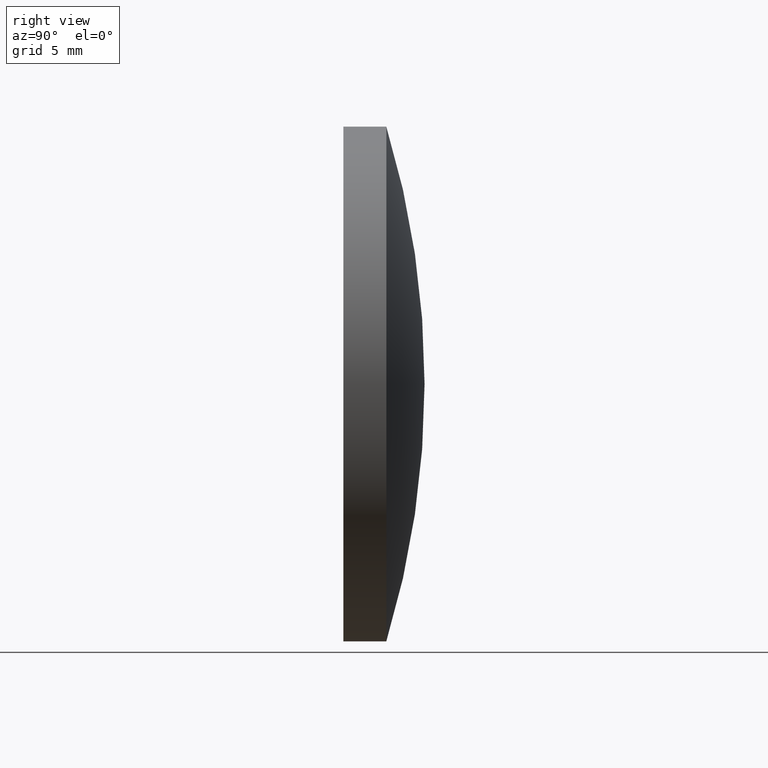
[diagram: clean part render]
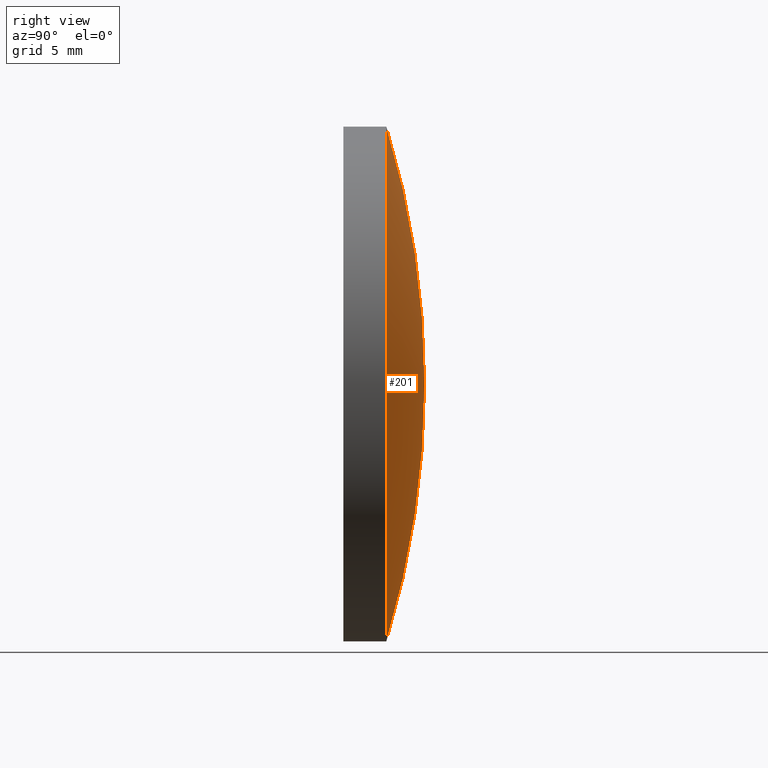
[diagram: same view with one face highlighted and labeled with its STEP entity id]
A machine part, right view. The second image highlights one B-rep face of the part: STEP entity #201.
In plain terms, the highlighted toroidal blend (fillet) surface has major radius 0.0114 mm and minor (blend) radius 51.64 mm.
Its self-contained STEP definition (entity closure, byte-faithful):
#13 = TOROIDAL_SURFACE ( 'NONE', #131, -0.01138314681478104495, 51.64000000000000057 ) ;
#16 = CARTESIAN_POINT ( 'NONE',  ( 0.000000000000000000, 2.500000000000000444, 15.00000000000000178 ) ) ;
#22 = AXIS2_PLACEMENT_3D ( 'NONE', #156, #35, #82 ) ;
#25 = AXIS2_PLACEMENT_3D ( 'NONE', #67, #189, #95 ) ;
#35 = DIRECTION ( 'NONE',  ( 1.000000000000000000, 0.000000000000000000, 1.224646799147353207E-16 ) ) ;
#36 = ORIENTED_EDGE ( 'NONE', *, *, #41, .F. ) ;
#38 = CARTESIAN_POINT ( 'NONE',  ( 1.836970198721029589E-15, 2.500000000000000444, -15.00000000000000178 ) ) ;
#41 = EDGE_CURVE ( 'NONE', #81, #187, #87, .T. ) ;
#45 = DIRECTION ( 'NONE',  ( -0.000000000000000000, 1.000000000000000000, -0.000000000000000000 ) ) ;
#58 = DIRECTION ( 'NONE',  ( 0.000000000000000000, 0.000000000000000000, 1.000000000000000000 ) ) ;
#65 = ORIENTED_EDGE ( 'NONE', *, *, #183, .T. ) ;
#67 = CARTESIAN_POINT ( 'NONE',  ( 0.000000000000000000, -46.90999874539085113, -0.01138314681478104495 ) ) ;
#71 = CARTESIAN_POINT ( 'NONE',  ( 0.000000000000000000, 4.730000000000000426, 0.000000000000000000 ) ) ;
#74 = DIRECTION ( 'NONE',  ( 0.000000000000000000, 0.000000000000000000, 1.000000000000000000 ) ) ;
#79 = EDGE_CURVE ( 'NONE', #186, #187, #193, .T. ) ;
#81 = VERTEX_POINT ( 'NONE', #16 ) ;
#82 = DIRECTION ( 'NONE',  ( 1.224646799147353207E-16, 0.000000000000000000, -1.000000000000000000 ) ) ;
#87 = CIRCLE ( 'NONE', #25, 51.64000000000000057 ) ;
#90 = CARTESIAN_POINT ( 'NONE',  ( 0.000000000000000000, 2.499999999999998224, 0.000000000000000000 ) ) ;
#95 = DIRECTION ( 'NONE',  ( 0.000000000000000000, 0.000000000000000000, 1.000000000000000000 ) ) ;
#98 = AXIS2_PLACEMENT_3D ( 'NONE', #90, #150, #74 ) ;
#108 = CARTESIAN_POINT ( 'NONE',  ( 0.000000000000000000, -46.90999874539085113, 0.000000000000000000 ) ) ;
#131 = AXIS2_PLACEMENT_3D ( 'NONE', #108, #45, #58 ) ;
#132 = FACE_OUTER_BOUND ( 'NONE', #200, .T. ) ;
#138 = CIRCLE ( 'NONE', #98, 15.00000000000000000 ) ;
#150 = DIRECTION ( 'NONE',  ( -0.000000000000000000, 1.000000000000000000, -0.000000000000000000 ) ) ;
#156 = CARTESIAN_POINT ( 'NONE',  ( -1.394033431094599677E-18, -46.90999874539085113, 0.01138314681478104495 ) ) ;
#183 = EDGE_CURVE ( 'NONE', #81, #186, #138, .T. ) ;
#186 = VERTEX_POINT ( 'NONE', #38 ) ;
#187 = VERTEX_POINT ( 'NONE', #71 ) ;
#189 = DIRECTION ( 'NONE',  ( -1.000000000000000000, 0.000000000000000000, 0.000000000000000000 ) ) ;
#193 = CIRCLE ( 'NONE', #22, 51.64000000000000057 ) ;
#197 = ORIENTED_EDGE ( 'NONE', *, *, #79, .T. ) ;
#200 = EDGE_LOOP ( 'NONE', ( #65, #197, #36 ) ) ;
#201 = ADVANCED_FACE ( 'NONE', ( #132 ), #13, .T. ) ;